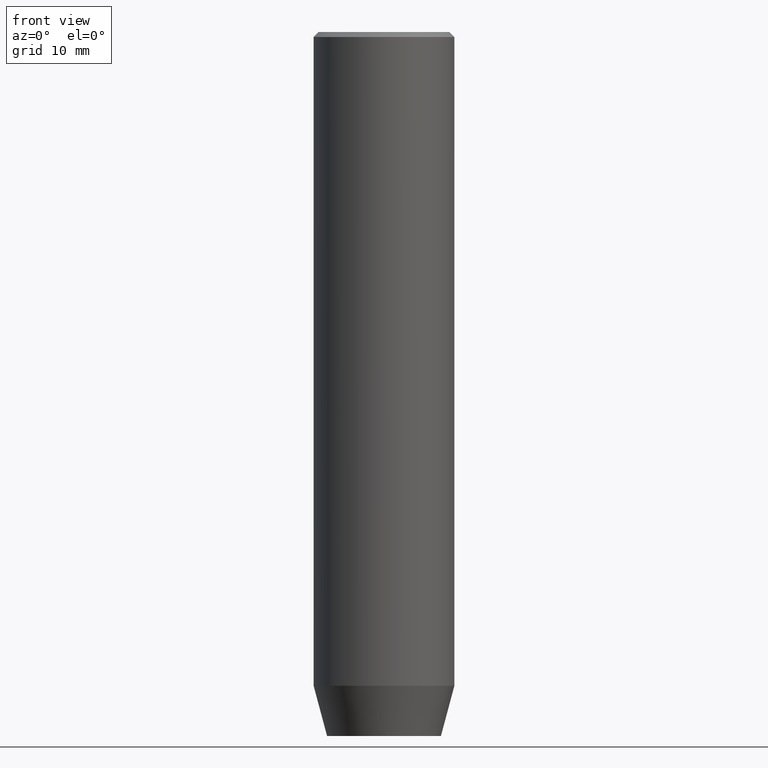
[diagram: clean part render]
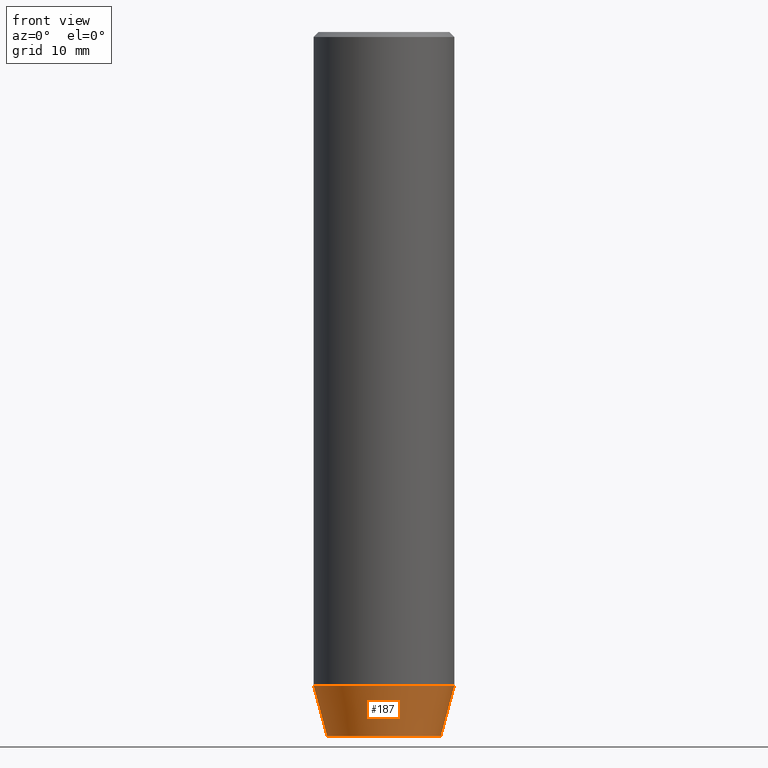
[diagram: same view with one face highlighted and labeled with its STEP entity id]
A machine part, front view. The second image highlights one B-rep face of the part: STEP entity #187.
In plain terms, the highlighted conical surface has half-angle 15 deg.
Its self-contained STEP definition (entity closure, byte-faithful):
#3 = ORIENTED_EDGE ( 'NONE', *, *, #412, .F. ) ;
#11 = ORIENTED_EDGE ( 'NONE', *, *, #283, .F. ) ;
#31 = LINE ( 'NONE', #434, #119 ) ;
#34 = DIRECTION ( 'NONE',  ( -0.2588190451025211836, 3.169619151431770488E-17, 0.9659258262890680902 ) ) ;
#54 = VERTEX_POINT ( 'NONE', #484 ) ;
#77 = DIRECTION ( 'NONE',  ( 1.000000000000000000, 0.000000000000000000, 0.000000000000000000 ) ) ;
#83 = DIRECTION ( 'NONE',  ( 0.2588190451025211836, 0.000000000000000000, 0.9659258262890680902 ) ) ;
#86 = CARTESIAN_POINT ( 'NONE',  ( 0.000000000000000000, 0.000000000000000000, -65.00000000000000000 ) ) ;
#90 = VERTEX_POINT ( 'NONE', #168 ) ;
#109 = ORIENTED_EDGE ( 'NONE', *, *, #337, .T. ) ;
#119 = VECTOR ( 'NONE', #34, 1000.000000000000114 ) ;
#135 = EDGE_CURVE ( 'NONE', #330, #157, #265, .T. ) ;
#136 = AXIS2_PLACEMENT_3D ( 'NONE', #203, #414, #287 ) ;
#157 = VERTEX_POINT ( 'NONE', #378 ) ;
#166 = CARTESIAN_POINT ( 'NONE',  ( 5.660254037844382857, 0.000000000000000000, -70.00000000000000000 ) ) ;
#168 = CARTESIAN_POINT ( 'NONE',  ( -5.660254037844382857, 7.752169791919238770E-16, -70.00000000000000000 ) ) ;
#184 = CARTESIAN_POINT ( 'NONE',  ( 7.000000000000000000, 0.000000000000000000, -65.00000000000000000 ) ) ;
#187 = ADVANCED_FACE ( 'NONE', ( #511 ), #401, .T. ) ;
#203 = CARTESIAN_POINT ( 'NONE',  ( 0.000000000000000000, 0.000000000000000000, -65.00000000000000000 ) ) ;
#223 = VECTOR ( 'NONE', #83, 1000.000000000000114 ) ;
#265 = LINE ( 'NONE', #184, #223 ) ;
#283 = EDGE_CURVE ( 'NONE', #90, #54, #31, .T. ) ;
#287 = DIRECTION ( 'NONE',  ( 1.000000000000000000, 0.000000000000000000, 0.000000000000000000 ) ) ;
#298 = AXIS2_PLACEMENT_3D ( 'NONE', #86, #440, #402 ) ;
#317 = EDGE_LOOP ( 'NONE', ( #11, #109, #424, #3 ) ) ;
#330 = VERTEX_POINT ( 'NONE', #166 ) ;
#337 = EDGE_CURVE ( 'NONE', #90, #330, #408, .T. ) ;
#348 = DIRECTION ( 'NONE',  ( -0.000000000000000000, -0.000000000000000000, 1.000000000000000000 ) ) ;
#378 = CARTESIAN_POINT ( 'NONE',  ( 7.000000000000000000, 0.000000000000000000, -65.00000000000000000 ) ) ;
#401 = CONICAL_SURFACE ( 'NONE', #136, 7.000000000000000000, 0.2617993877991499074 ) ;
#402 = DIRECTION ( 'NONE',  ( 1.000000000000000000, 0.000000000000000000, 0.000000000000000000 ) ) ;
#408 = CIRCLE ( 'NONE', #476, 5.660254037844382857 ) ;
#412 = EDGE_CURVE ( 'NONE', #54, #157, #485, .T. ) ;
#414 = DIRECTION ( 'NONE',  ( -0.000000000000000000, -0.000000000000000000, 1.000000000000000000 ) ) ;
#424 = ORIENTED_EDGE ( 'NONE', *, *, #135, .T. ) ;
#434 = CARTESIAN_POINT ( 'NONE',  ( -7.000000000000000000, 8.572527594031473190E-16, -65.00000000000000000 ) ) ;
#440 = DIRECTION ( 'NONE',  ( -0.000000000000000000, -0.000000000000000000, 1.000000000000000000 ) ) ;
#476 = AXIS2_PLACEMENT_3D ( 'NONE', #572, #348, #77 ) ;
#484 = CARTESIAN_POINT ( 'NONE',  ( -7.000000000000000000, 8.572527594031473190E-16, -65.00000000000000000 ) ) ;
#485 = CIRCLE ( 'NONE', #298, 7.000000000000000000 ) ;
#511 = FACE_OUTER_BOUND ( 'NONE', #317, .T. ) ;
#572 = CARTESIAN_POINT ( 'NONE',  ( 0.000000000000000000, 0.000000000000000000, -70.00000000000000000 ) ) ;